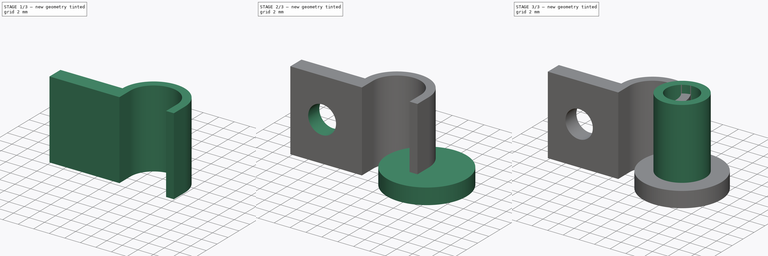
[diagram: build sequence overview — one tinted view per stage of 3, left to right]
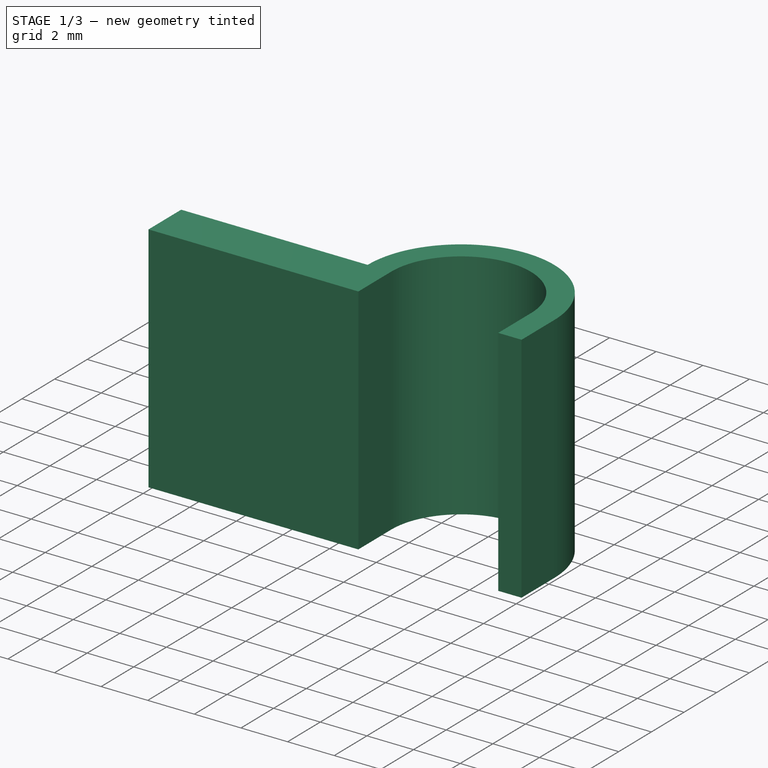
[diagram: stage 1 of 3 — iso view after this stage's code; geometry added in this stage tinted green]
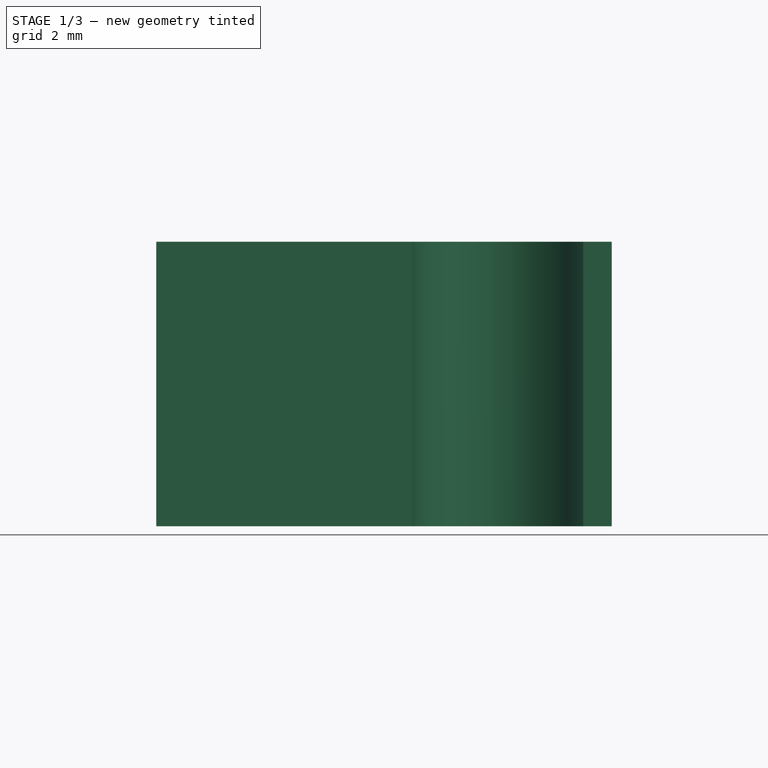
[diagram: stage 1 of 3 — front view after this stage's code; geometry added in this stage tinted green]
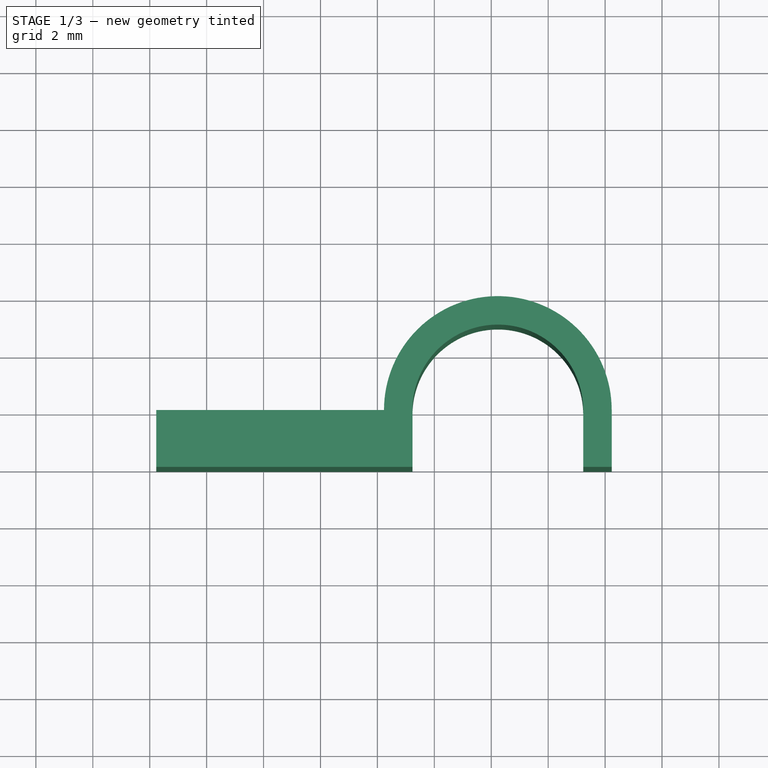
[diagram: stage 1 of 3 — top view after this stage's code; geometry added in this stage tinted green]
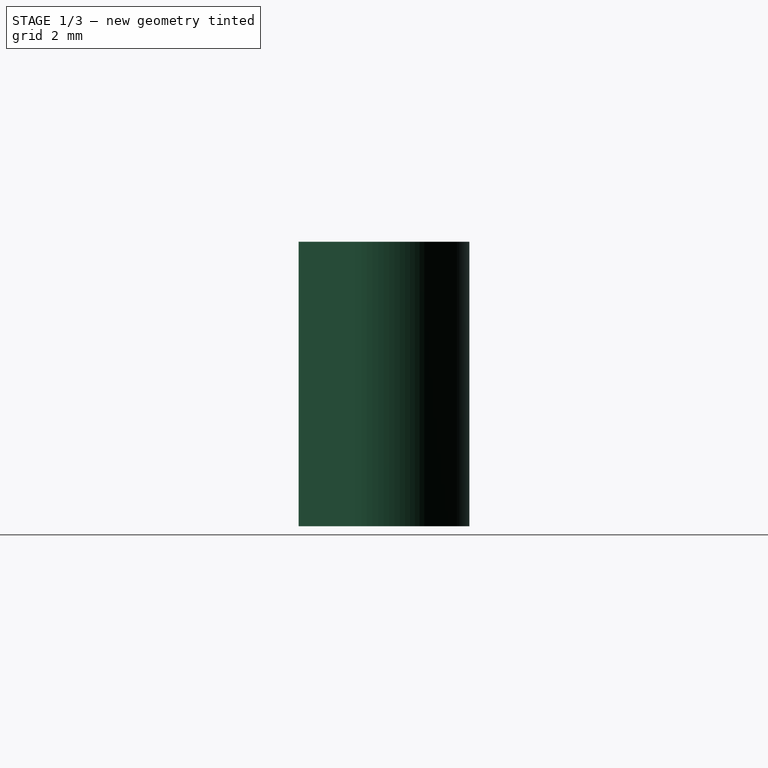
[diagram: stage 1 of 3 — right view after this stage's code; geometry added in this stage tinted green]
FCSTD DOCUMENT  (FreeCAD 0.19R24276 (Git))
Label: DH11 offset
License: All rights reserved
LicenseURL: http://en.wikipedia.org/wiki/All_rights_reserved
objects: Sketcher::SketchObject×6, PartDesign::Pad×3, PartDesign::Pocket×3, PartDesign::Body×2
note: 20 computed .brp shape members not serialized (recipe doc carries the construction recipe); baked Part::Feature solids carry a one-line shape summary decoded from their .brp

FEATURE [PartDesign::Body] Body
  Group = -> [Sketch,Pad,Sketch001,Pad001,Sketch002,Pocket]
  Origin = -> Origin
  Tip = -> Pocket
FEATURE [Sketcher::SketchObject] Sketch003
  FullyConstrained = false
  MapMode = 5
  Support = -> [XY_Plane001]
  sketch-geometry (5):
    g0: LineSegment StartX=-15.7684 StartY=0 StartZ=0 EndX=-7.76844 EndY=-8.831e-13 EndZ=0
    g1: ArcOfCircle CenterX=-3.76844 CenterY=-8.836e-13 CenterZ=0 NormalX=0 NormalY=0 NormalZ=1 AngleXU=0 Radius=4 StartAngle=2e-16 EndAngle=3.14159
    g2: LineSegment StartX=0.231565 StartY=-8.829e-13 StartZ=0 EndX=0.231565 EndY=-2 EndZ=0
    g3: LineSegment StartX=0.231565 StartY=-2 StartZ=0 EndX=-15.7684 EndY=-2 EndZ=0
    g4: LineSegment StartX=-15.7684 StartY=-2 StartZ=0 EndX=-15.7684 EndY=0 EndZ=0
  constraints (13):
    c: PointOnObject(g0,g-1)
    c: PointOnObject(g0,g-1)
    c: Perpendicular(g0,g1) = 4.71239
    c: PointOnObject(g1,g-1)
    c: Tangent(g1,g2) = 1.5708
    c: Coincident(g2,g3)
    c: Horizontal(g3)
    c: Coincident(g3,g4)
    c: Vertical(g4)
    c: DistanceX(g0,g0) = 8
    c: DistanceX(g3,g3) = 16
    c: Coincident(g4,g0)
    c: DistanceY(g4,g4) = 2
FEATURE [PartDesign::Pad] Pad002
  Direction = (1,1,1)
  Length = 10
  Length2 = 100
  Profile = -> Sketch003
  Type = 0
FEATURE [Sketcher::SketchObject] Sketch004
  ExternalGeometry = -> [Pad002]
  FullyConstrained = false
  MapMode = 5
  Placement = pos=(0,0,10) rot=(0,0,1;0rad)
  Support = -> [Pad002]
  sketch-geometry (4):
    g0: ArcOfCircle CenterX=-3.76844 CenterY=-1e-16 CenterZ=0 NormalX=0 NormalY=0 NormalZ=1 AngleXU=0 Radius=3 StartAngle=6.28318 EndAngle=9.42477
    g1: LineSegment StartX=-0.768435 StartY=-1.29492e-05 StartZ=0 EndX=-0.768435 EndY=-2 EndZ=0
    g2: LineSegment StartX=-0.768435 StartY=-2 StartZ=0 EndX=-6.76844 EndY=-2 EndZ=0
    g3: LineSegment StartX=-6.76844 StartY=-2 StartZ=0 EndX=-6.76844 EndY=1.49832e-05 EndZ=0
  constraints (12):
    c: Radius(g0) = 3
    c: DistanceX(g0,g-3) = 4
    c: Coincident(g1,g2)
    c: Coincident(g2,g3)
    c: Horizontal(g2)
    c: Vertical(g1)
    c: Vertical(g3)
    c: PointOnObject(g1,g-4)
    c: DistanceX(g2,g2) = 6
    c: DistanceY(g-4,g0) = 2
    c: Coincident(g0,g3)
    c: Coincident(g0,g1)
FEATURE [PartDesign::Pocket] Pocket001
  BaseFeature = -> Pad002
  Length = 5
  Length2 = 100
  Profile = -> Sketch004
  Type = 1
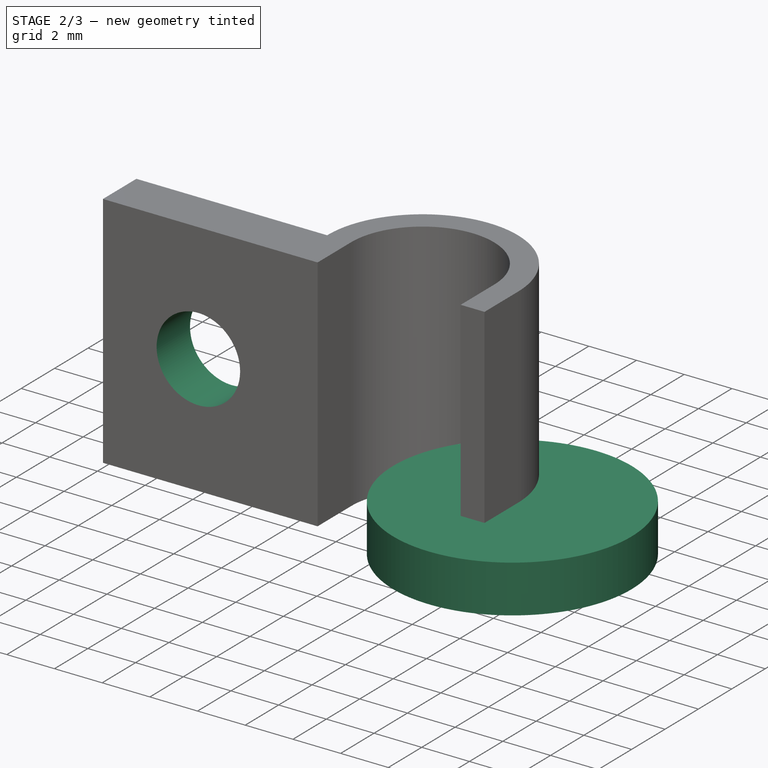
[diagram: stage 2 of 3 — iso view after this stage's code; geometry added in this stage tinted green]
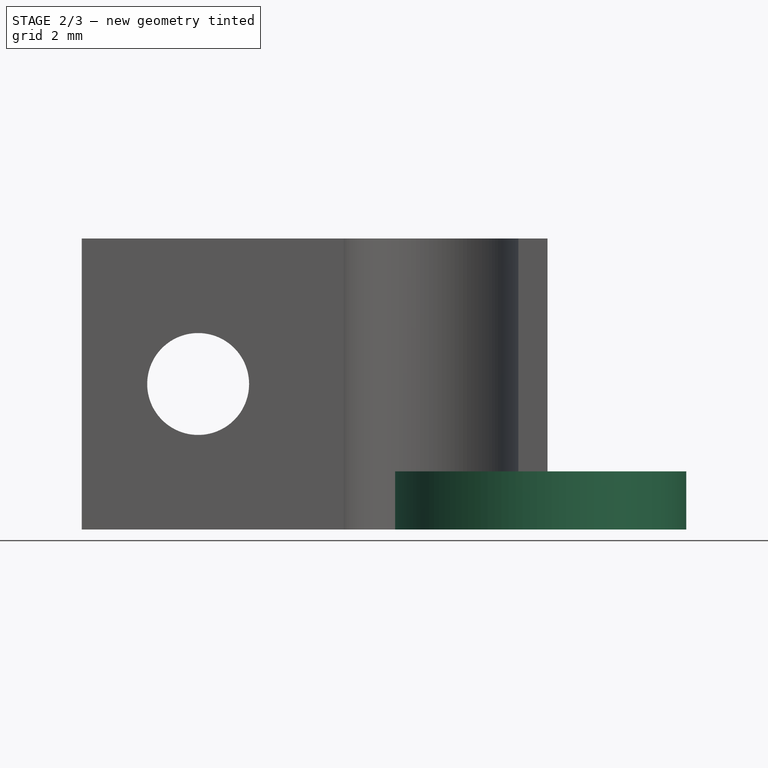
[diagram: stage 2 of 3 — front view after this stage's code; geometry added in this stage tinted green]
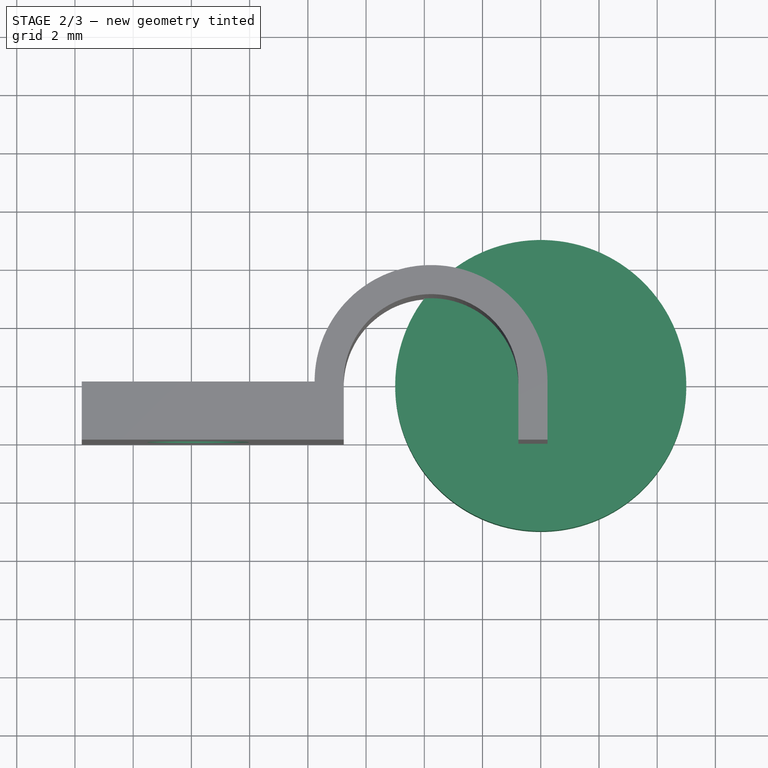
[diagram: stage 2 of 3 — top view after this stage's code; geometry added in this stage tinted green]
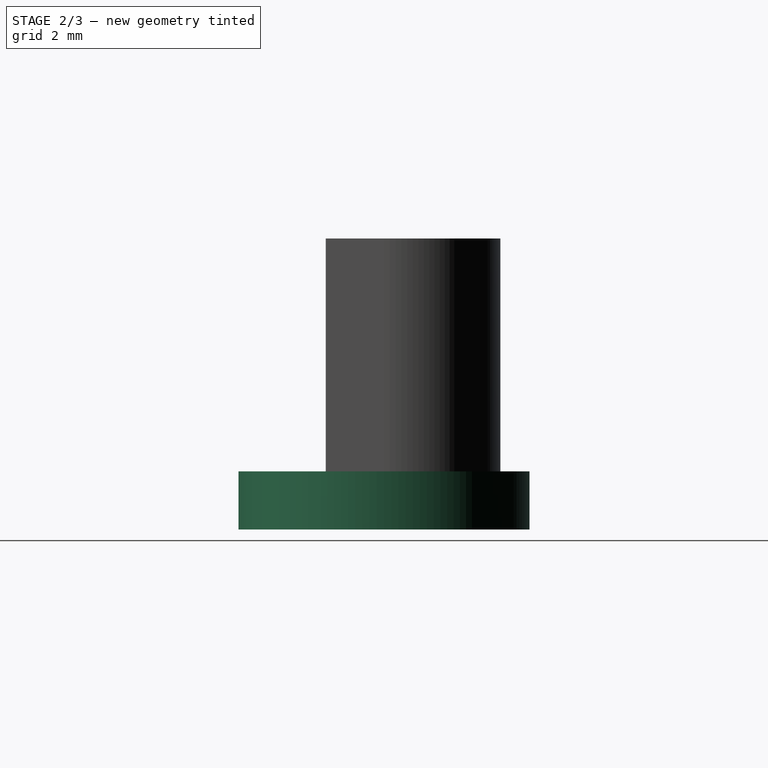
[diagram: stage 2 of 3 — right view after this stage's code; geometry added in this stage tinted green]
FEATURE [Sketcher::SketchObject] Sketch
  FullyConstrained = true
  MapMode = 5
  Support = -> [XY_Plane]
  sketch-geometry (1):
    g0: Circle CenterX=0 CenterY=0 CenterZ=0 NormalX=0 NormalY=0 NormalZ=1 AngleXU=0 Radius=5
  constraints (2):
    c: Coincident(g0,g-1)
    c: Radius(g0) = 5
FEATURE [PartDesign::Pad] Pad
  Direction = (1,1,1)
  Length = 2
  Length2 = 100
  Profile = -> Sketch
  Type = 0
FEATURE [Sketcher::SketchObject] Sketch005
  ExternalGeometry = -> [Pocket001]
  FullyConstrained = true
  MapMode = 5
  Placement = pos=(0,-1.7407e-12,0) rot=(0,0.707107,0.707107;3.14159rad)
  Support = -> [Pocket001]
  sketch-geometry (1):
    g0: Circle CenterX=11.7684 CenterY=5 CenterZ=0 NormalX=0 NormalY=0 NormalZ=1 AngleXU=0 Radius=1.75
  constraints (2):
    c: Radius(g0) = 1.75
    c: Symmetric(g-6,g-4,g0)
FEATURE [PartDesign::Pocket] Pocket002
  BaseFeature = -> Pocket001
  Length = 5
  Length2 = 100
  Profile = -> Sketch005
  Type = 1
FEATURE [PartDesign::Body] Body001
  Group = -> [Sketch003,Pad002,Sketch004,Pocket001,Sketch005,Pocket002]
  Origin = -> Origin001
  Tip = -> Pocket002
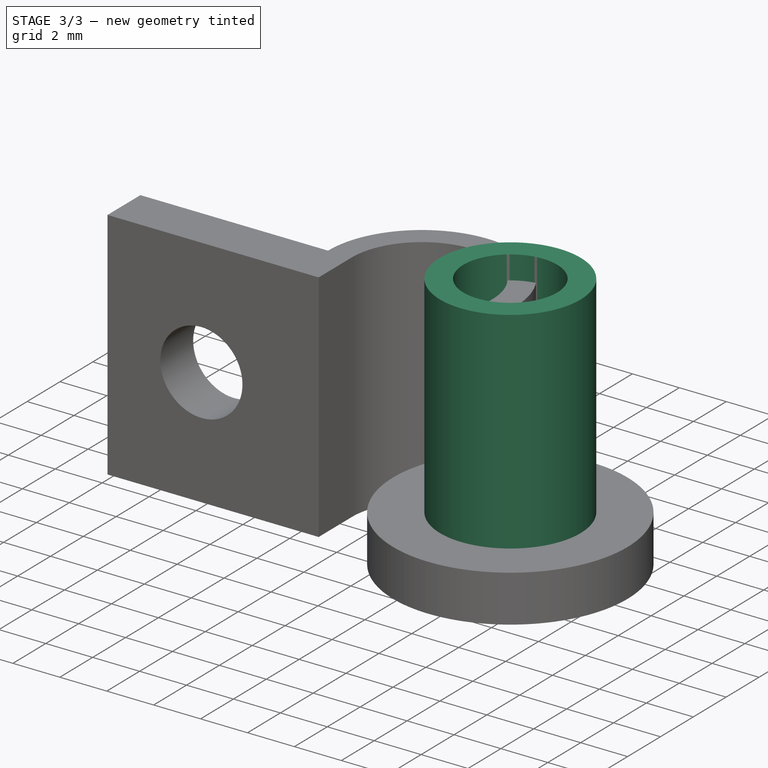
[diagram: stage 3 of 3 — iso view after this stage's code; geometry added in this stage tinted green]
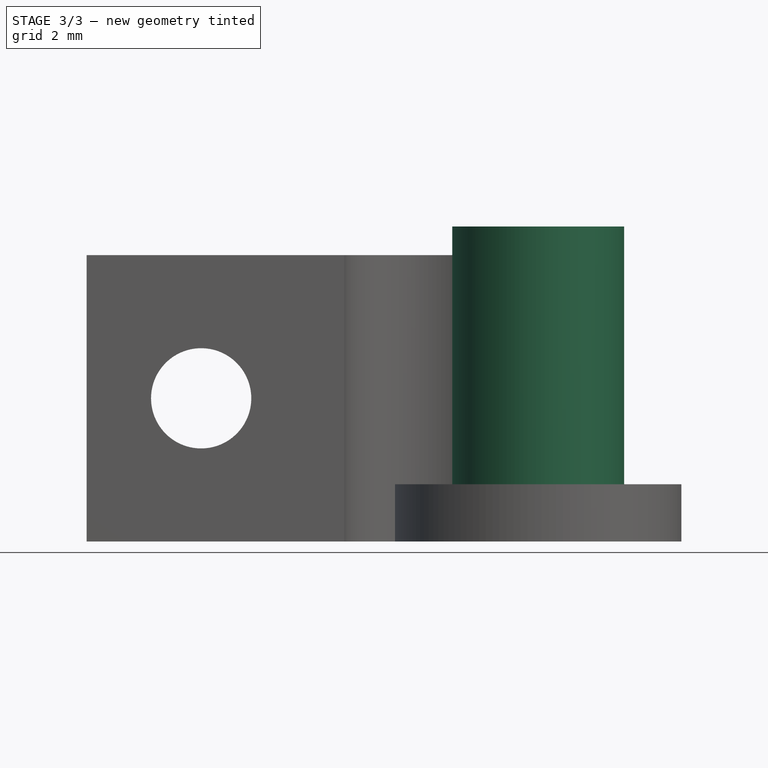
[diagram: stage 3 of 3 — front view after this stage's code; geometry added in this stage tinted green]
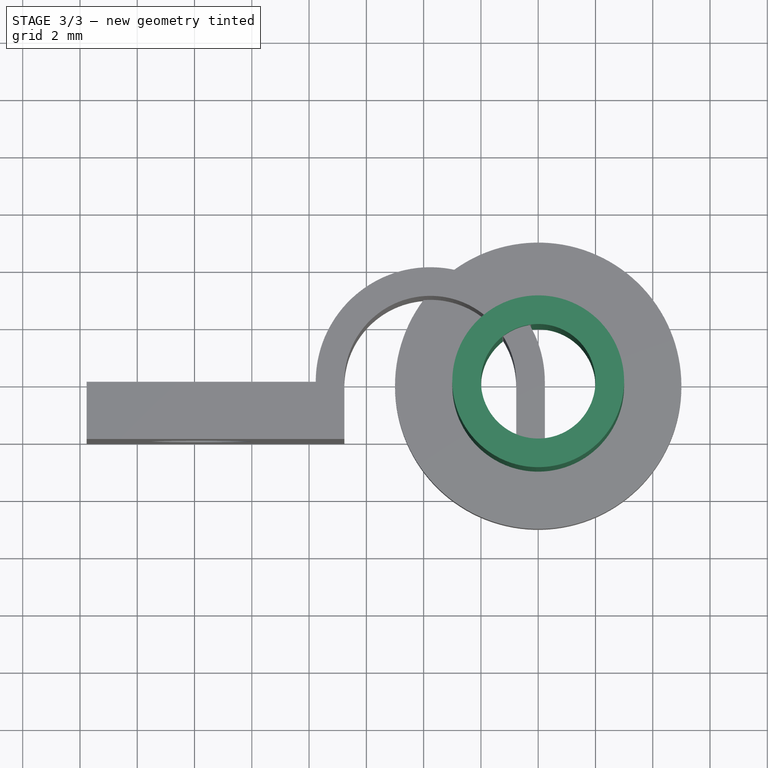
[diagram: stage 3 of 3 — top view after this stage's code; geometry added in this stage tinted green]
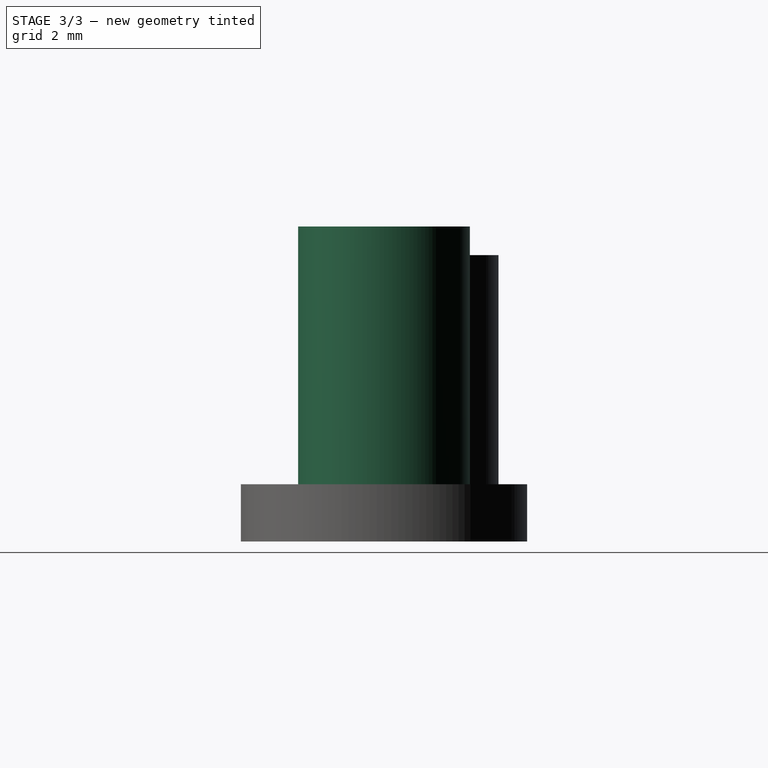
[diagram: stage 3 of 3 — right view after this stage's code; geometry added in this stage tinted green]
FEATURE [Sketcher::SketchObject] Sketch001
  FullyConstrained = true
  MapMode = 5
  Placement = pos=(0,0,2) rot=(0,0,1;0rad)
  Support = -> [Pad]
  sketch-geometry (1):
    g0: Circle CenterX=0 CenterY=0 CenterZ=0 NormalX=0 NormalY=0 NormalZ=1 AngleXU=0 Radius=3
  constraints (2):
    c: Coincident(g0,g-1)
    c: Radius(g0) = 3
FEATURE [PartDesign::Pad] Pad001
  BaseFeature = -> Pad
  Direction = (1,1,1)
  Length = 9
  Length2 = 100
  Profile = -> Sketch001
  Type = 0
FEATURE [Sketcher::SketchObject] Sketch002
  FullyConstrained = true
  MapMode = 5
  Placement = pos=(0,0,11) rot=(0,0,1;0rad)
  Support = -> [Pad001]
  sketch-geometry (1):
    g0: Circle CenterX=0 CenterY=0 CenterZ=0 NormalX=0 NormalY=0 NormalZ=1 AngleXU=0 Radius=2
  constraints (2):
    c: Coincident(g0,g-1)
    c: Radius(g0) = 2
FEATURE [PartDesign::Pocket] Pocket
  BaseFeature = -> Pad001
  Length = 5
  Length2 = 100
  Profile = -> Sketch002
  Type = 1
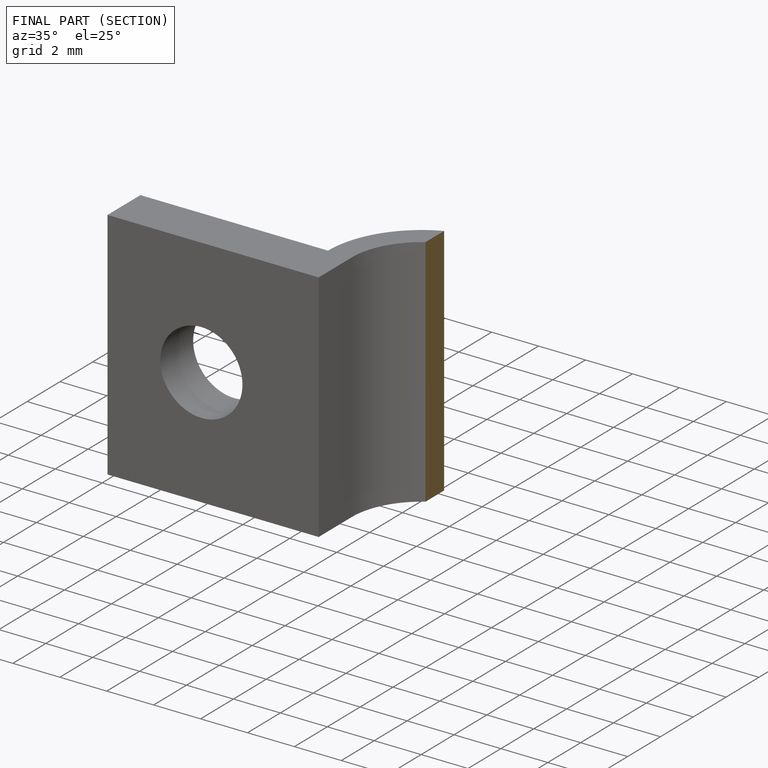
[diagram: finished part — half-section view (interior)]
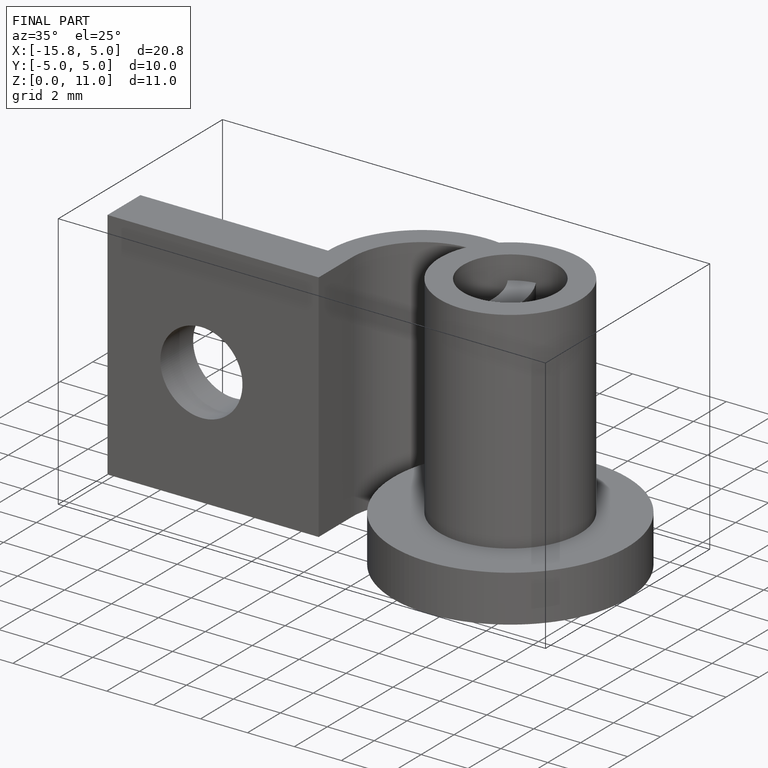
[diagram: finished part — iso view with bounding-box wireframe]
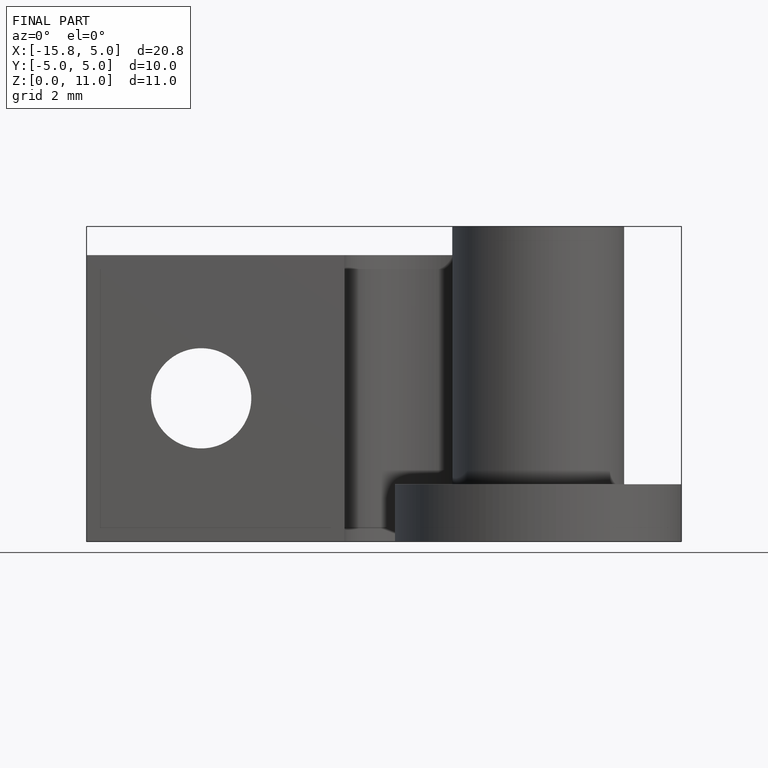
[diagram: finished part — front view with bounding-box wireframe]
